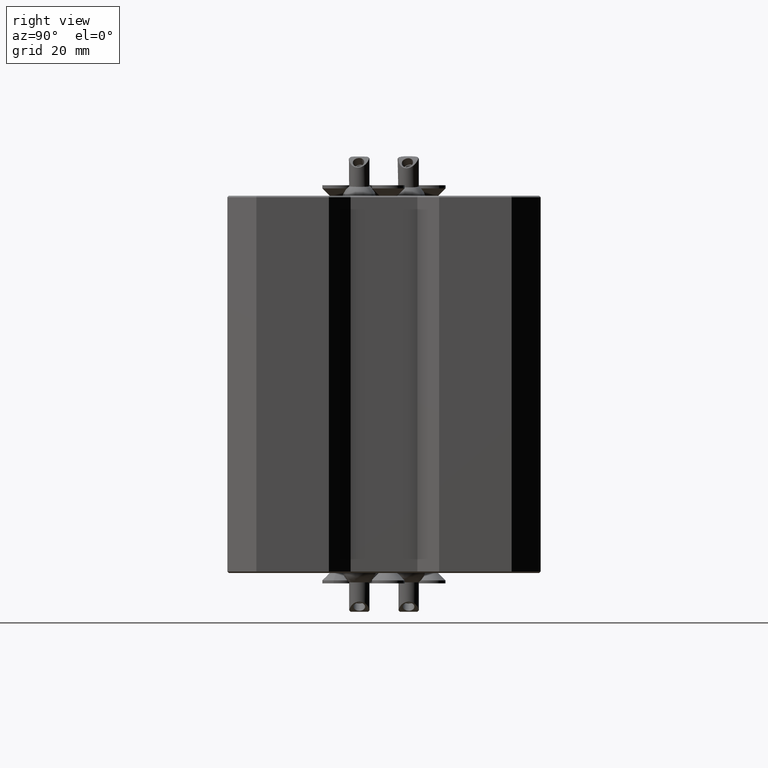
[diagram: clean part render]
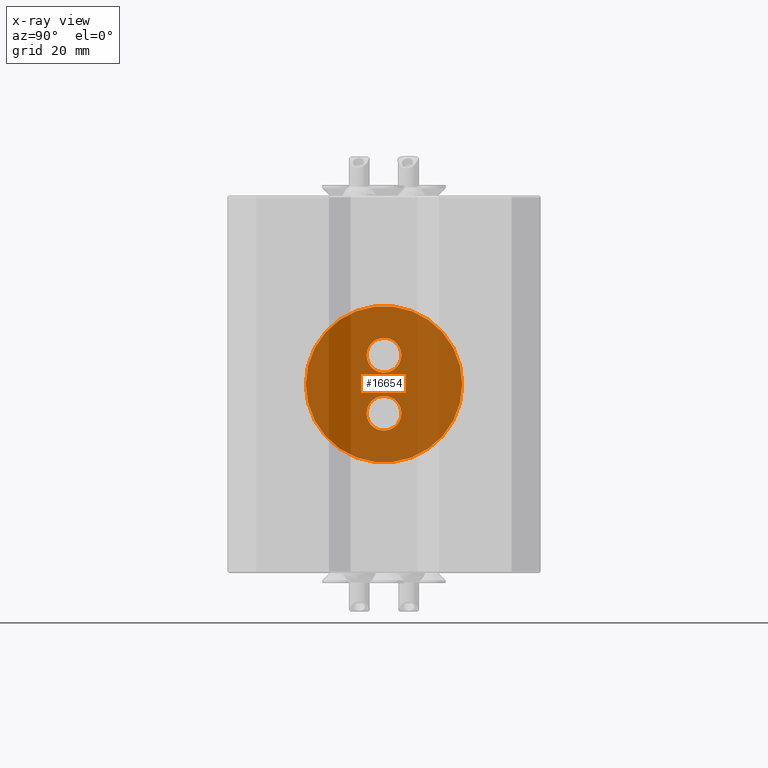
[diagram: x-ray — body ghosted, one internal face saturated and labeled with its STEP entity id]
A machine part, right view, then the same camera in x-ray: the body is ghosted and one INTERNAL B-rep face — a face not visible from any outside direction — is saturated and labeled: STEP entity #16654.
In plain terms, the highlighted planar face has unit normal (-1, 0, 0).
Its self-contained STEP definition (entity closure, byte-faithful):
#429 = DIRECTION ( 'NONE',  ( -1.000000000000000000, 3.491481338843133355E-15, 0.000000000000000000 ) ) ;
#2975 = AXIS2_PLACEMENT_3D ( 'NONE', #14152, #17529, #29112 ) ;
#5314 = ORIENTED_EDGE ( 'NONE', *, *, #39948, .T. ) ;
#7921 = EDGE_CURVE ( 'NONE', #41254, #30607, #47585, .T. ) ;
#8867 = DIRECTION ( 'NONE',  ( 3.491481338843133355E-15, 1.000000000000000000, -1.799999999999999903E-14 ) ) ;
#9511 = AXIS2_PLACEMENT_3D ( 'NONE', #45150, #23241, #44675 ) ;
#9601 = VERTEX_POINT ( 'NONE', #23990 ) ;
#10391 = ORIENTED_EDGE ( 'NONE', *, *, #19994, .F. ) ;
#10748 = EDGE_LOOP ( 'NONE', ( #10391, #17534 ) ) ;
#12065 = CIRCLE ( 'NONE', #23531, 26.95000000000000284 ) ;
#12493 = FACE_BOUND ( 'NONE', #18187, .T. ) ;
#13700 = CARTESIAN_POINT ( 'NONE',  ( 15.00000000000009237, 26.94999999999994955, -4.857225732735059864E-13 ) ) ;
#13738 = EDGE_CURVE ( 'NONE', #33599, #9601, #14111, .T. ) ;
#14111 = CIRCLE ( 'NONE', #37204, 6.000000000000000000 ) ;
#14152 = CARTESIAN_POINT ( 'NONE',  ( 15.00000000000000000, -5.237222008264700033E-14, 0.000000000000000000 ) ) ;
#15118 = CIRCLE ( 'NONE', #28220, 6.000000000000000000 ) ;
#15871 = PLANE ( 'NONE',  #30649 ) ;
#16654 = ADVANCED_FACE ( 'NONE', ( #12493, #23110, #44784 ), #15871, .F. ) ;
#17529 = DIRECTION ( 'NONE',  ( -1.000000000000000000, 3.491481338843133355E-15, 0.000000000000000000 ) ) ;
#17534 = ORIENTED_EDGE ( 'NONE', *, *, #7921, .F. ) ;
#17564 = CARTESIAN_POINT ( 'NONE',  ( 15.00000000000001954, 6.000000000000128786, 9.999999999999896971 ) ) ;
#18187 = EDGE_LOOP ( 'NONE', ( #20390, #5314 ) ) ;
#19512 = CARTESIAN_POINT ( 'NONE',  ( 15.00000000000000000, -5.374722200826470361E-13, -26.95000000000000284 ) ) ;
#19548 = CARTESIAN_POINT ( 'NONE',  ( 15.00000000000000000, 1.276277799173529521E-13, 9.999999999999994671 ) ) ;
#19694 = CARTESIAN_POINT ( 'NONE',  ( 15.00000000000000000, -2.323722200826469528E-13, -10.00000000000000178 ) ) ;
#19994 = EDGE_CURVE ( 'NONE', #30607, #41254, #12065, .T. ) ;
#20390 = ORIENTED_EDGE ( 'NONE', *, *, #21070, .T. ) ;
#20884 = EDGE_CURVE ( 'NONE', #9601, #33599, #24368, .T. ) ;
#21070 = EDGE_CURVE ( 'NONE', #36951, #40470, #15118, .T. ) ;
#21187 = DIRECTION ( 'NONE',  ( -1.000000000000000000, 3.491481338843133355E-15, 0.000000000000000000 ) ) ;
#21903 = CARTESIAN_POINT ( 'NONE',  ( 15.00000000000000000, -5.237222008264700033E-14, 0.000000000000000000 ) ) ;
#23110 = FACE_BOUND ( 'NONE', #38539, .T. ) ;
#23241 = DIRECTION ( 'NONE',  ( -1.000000000000000000, 3.491481338843133355E-15, 0.000000000000000000 ) ) ;
#23531 = AXIS2_PLACEMENT_3D ( 'NONE', #21903, #21187, #43584 ) ;
#23990 = CARTESIAN_POINT ( 'NONE',  ( 14.99999999999997868, -5.999999999999872102, 10.00000000000010658 ) ) ;
#24368 = CIRCLE ( 'NONE', #38970, 6.000000000000000000 ) ;
#25727 = CIRCLE ( 'NONE', #9511, 6.000000000000000000 ) ;
#26502 = ORIENTED_EDGE ( 'NONE', *, *, #20884, .T. ) ;
#26774 = DIRECTION ( 'NONE',  ( 3.469446951953614189E-15, 1.000000000000000000, -1.792547591842700769E-14 ) ) ;
#27705 = ORIENTED_EDGE ( 'NONE', *, *, #13738, .T. ) ;
#28220 = AXIS2_PLACEMENT_3D ( 'NONE', #19694, #34398, #31247 ) ;
#28243 = CARTESIAN_POINT ( 'NONE',  ( 15.00000000000001954, 5.999999999999767297, -10.00000000000010658 ) ) ;
#29112 = DIRECTION ( 'NONE',  ( 3.475883773756867331E-15, 1.000000000000000000, -1.799999999999999903E-14 ) ) ;
#30607 = VERTEX_POINT ( 'NONE', #13700 ) ;
#30649 = AXIS2_PLACEMENT_3D ( 'NONE', #19512, #429, #8867 ) ;
#31247 = DIRECTION ( 'NONE',  ( 3.469446951953614189E-15, 1.000000000000000000, -1.792547591842700769E-14 ) ) ;
#33599 = VERTEX_POINT ( 'NONE', #17564 ) ;
#34398 = DIRECTION ( 'NONE',  ( -1.000000000000000000, 3.491481338843133355E-15, 0.000000000000000000 ) ) ;
#36180 = DIRECTION ( 'NONE',  ( -1.000000000000000000, 3.491481338843133355E-15, 0.000000000000000000 ) ) ;
#36951 = VERTEX_POINT ( 'NONE', #39949 ) ;
#37204 = AXIS2_PLACEMENT_3D ( 'NONE', #47254, #36180, #42924 ) ;
#38470 = CARTESIAN_POINT ( 'NONE',  ( 14.99999999999990585, -26.95000000000005258, 4.857225732735059864E-13 ) ) ;
#38539 = EDGE_LOOP ( 'NONE', ( #26502, #27705 ) ) ;
#38970 = AXIS2_PLACEMENT_3D ( 'NONE', #19548, #45293, #26774 ) ;
#39948 = EDGE_CURVE ( 'NONE', #40470, #36951, #25727, .T. ) ;
#39949 = CARTESIAN_POINT ( 'NONE',  ( 14.99999999999997868, -6.000000000000232703, -9.999999999999891642 ) ) ;
#40470 = VERTEX_POINT ( 'NONE', #28243 ) ;
#41254 = VERTEX_POINT ( 'NONE', #38470 ) ;
#42924 = DIRECTION ( 'NONE',  ( 3.469446951953614189E-15, 1.000000000000000000, -1.792547591842700769E-14 ) ) ;
#43584 = DIRECTION ( 'NONE',  ( 3.475883773756867331E-15, 1.000000000000000000, -1.799999999999999903E-14 ) ) ;
#44675 = DIRECTION ( 'NONE',  ( 3.469446951953614189E-15, 1.000000000000000000, -1.792547591842700769E-14 ) ) ;
#44784 = FACE_OUTER_BOUND ( 'NONE', #10748, .T. ) ;
#45150 = CARTESIAN_POINT ( 'NONE',  ( 15.00000000000000000, -2.323722200826469528E-13, -10.00000000000000178 ) ) ;
#45293 = DIRECTION ( 'NONE',  ( -1.000000000000000000, 3.491481338843133355E-15, 0.000000000000000000 ) ) ;
#47254 = CARTESIAN_POINT ( 'NONE',  ( 15.00000000000000000, 1.276277799173529521E-13, 9.999999999999994671 ) ) ;
#47585 = CIRCLE ( 'NONE', #2975, 26.95000000000000284 ) ;